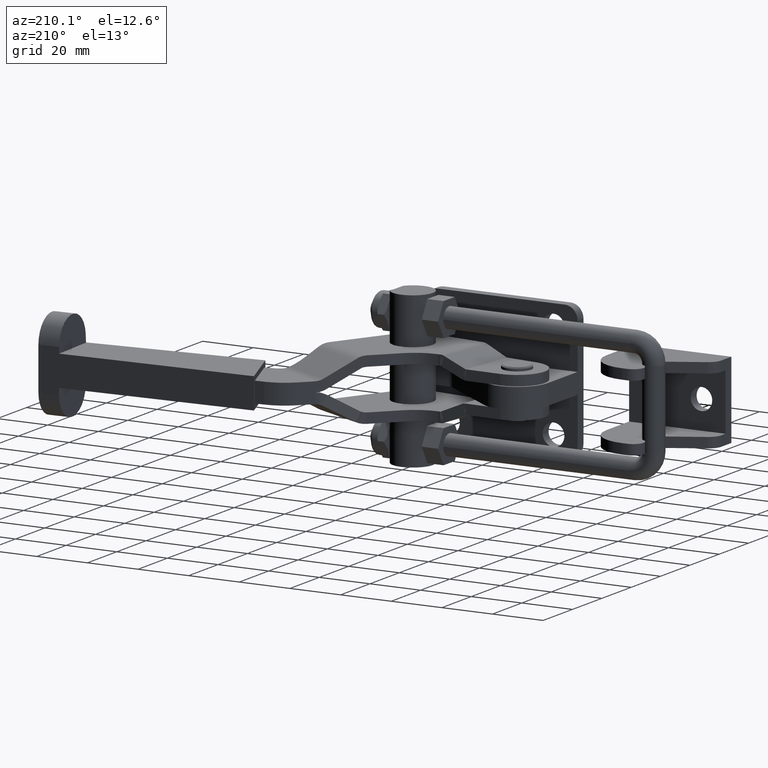
[diagram: clean part render]
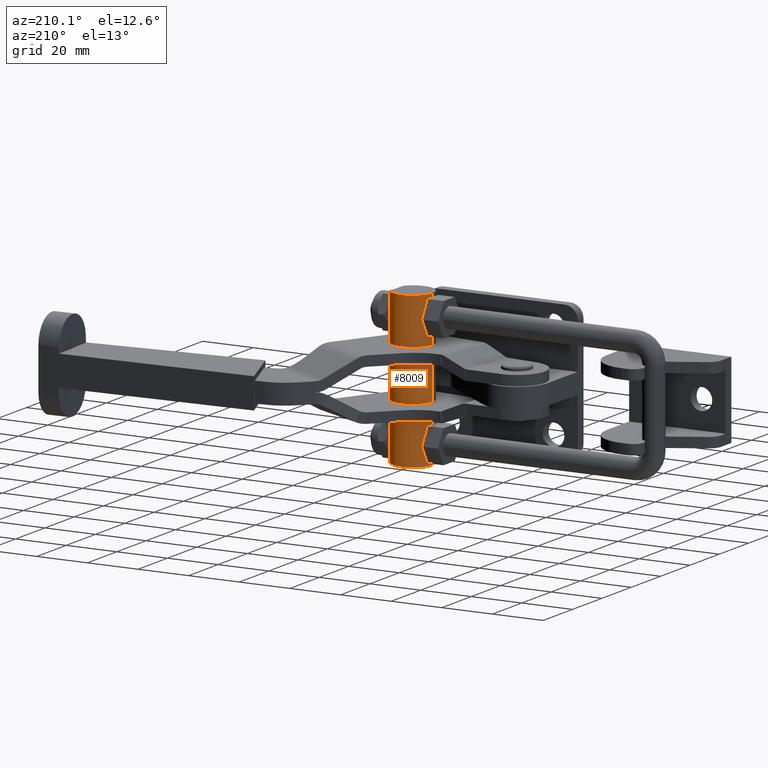
[diagram: same view with one face highlighted and labeled with its STEP entity id]
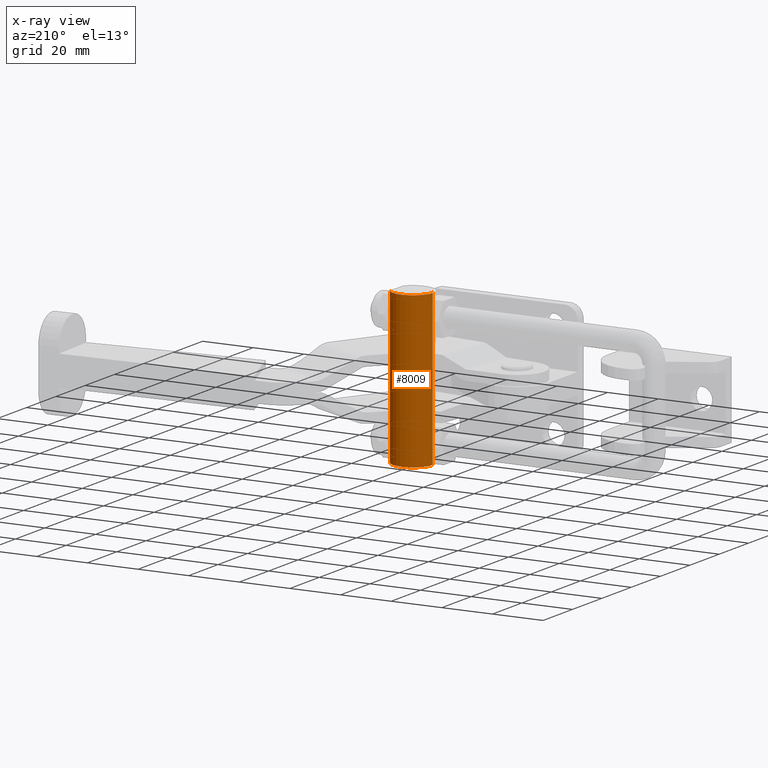
[diagram: x-ray of the same camera — body ghosted, the highlighted face saturated]
A machine part, auxiliary view. The second image highlights one B-rep face of the part: STEP entity #8009.
The next image is the same camera in x-ray: the body ghosted, the highlighted face saturated — about 0% of this face is hidden behind the body in this view.
In plain terms, the highlighted cylindrical surface (edge-blend (fillet) strip) has radius 7.9 mm, axis along (-0, -0, 1).
Its self-contained STEP definition (entity closure, byte-faithful):
#152 = VERTEX_POINT ( 'NONE', #10402 ) ;
#643 = VERTEX_POINT ( 'NONE', #3316 ) ;
#780 = EDGE_CURVE ( 'NONE', #8865, #2119, #8455, .T. ) ;
#861 = EDGE_CURVE ( 'NONE', #8148, #152, #7909, .T. ) ;
#900 = DIRECTION ( 'NONE',  ( -1.253106180652195100E-019, -2.280037029687027400E-018, 1.000000000000000000 ) ) ;
#1067 = CARTESIAN_POINT ( 'NONE',  ( 60.63629203062469500, 27.35929901759610800, 12.74999999999998200 ) ) ;
#1242 = ORIENTED_EDGE ( 'NONE', *, *, #780, .F. ) ;
#1246 = CARTESIAN_POINT ( 'NONE',  ( 62.01511138596539800, 22.86276066177861600, 12.74999999999997900 ) ) ;
#1252 = LINE ( 'NONE', #2995, #10102 ) ;
#1256 = EDGE_CURVE ( 'NONE', #7160, #4249, #6679, .T. ) ;
#1385 = DIRECTION ( 'NONE',  ( 1.253106180652195100E-019, 2.280037029687027400E-018, -1.000000000000000000 ) ) ;
#1394 = CARTESIAN_POINT ( 'NONE',  ( 54.11519915659924600, 22.89999999999990300, -12.75000000000000900 ) ) ;
#1617 = CARTESIAN_POINT ( 'NONE',  ( 60.63629203062469500, 27.35929901759610800, -30.14999999999999500 ) ) ;
#1638 = CARTESIAN_POINT ( 'NONE',  ( 60.63629203062469500, 27.35929901759610800, -30.14999999999999500 ) ) ;
#1713 = CARTESIAN_POINT ( 'NONE',  ( 60.63629203062469500, 27.35929901759610800, 26.94999999999961600 ) ) ;
#1819 = CARTESIAN_POINT ( 'NONE',  ( 46.21528692723308800, 22.93723933822119000, -30.14999999999999500 ) ) ;
#1890 = VECTOR ( 'NONE', #10649, 1000.000000000000000 ) ;
#1925 = CARTESIAN_POINT ( 'NONE',  ( 60.63629203062469500, 27.35929901759610800, -30.14999999999999500 ) ) ;
#1931 = FACE_OUTER_BOUND ( 'NONE', #5915, .T. ) ;
#2064 = EDGE_CURVE ( 'NONE', #7628, #8865, #3973, .T. ) ;
#2119 = VERTEX_POINT ( 'NONE', #4300 ) ;
#2204 = EDGE_CURVE ( 'NONE', #4068, #7628, #5063, .T. ) ;
#2220 = DIRECTION ( 'NONE',  ( -0.9999888897931834600, 0.004713840281175405400, 0.0000000000000000000 ) ) ;
#2223 = AXIS2_PLACEMENT_3D ( 'NONE', #6016, #900, #6877 ) ;
#2304 = VERTEX_POINT ( 'NONE', #3734 ) ;
#2457 = CARTESIAN_POINT ( 'NONE',  ( 60.63629203062469500, 27.35929901759610800, -30.14999999999999500 ) ) ;
#2523 = EDGE_CURVE ( 'NONE', #4249, #9988, #3586, .T. ) ;
#2615 = ORIENTED_EDGE ( 'NONE', *, *, #2204, .F. ) ;
#2682 = CARTESIAN_POINT ( 'NONE',  ( 46.21528692723308800, 22.93723933822119000, -30.14999999999999500 ) ) ;
#2703 = EDGE_CURVE ( 'NONE', #152, #643, #10320, .T. ) ;
#2780 = VECTOR ( 'NONE', #6209, 1000.000000000000000 ) ;
#2995 = CARTESIAN_POINT ( 'NONE',  ( 60.63629203062469500, 27.35929901759610800, -30.14999999999999500 ) ) ;
#3293 = DIRECTION ( 'NONE',  ( 0.9999888897931834600, -0.004713840281175405400, 0.0000000000000000000 ) ) ;
#3316 = CARTESIAN_POINT ( 'NONE',  ( 60.63629203062469500, 27.35929901759610800, 30.14999999999999500 ) ) ;
#3384 = DIRECTION ( 'NONE',  ( 1.253106180652195100E-019, 2.280037029687027400E-018, -1.000000000000000000 ) ) ;
#3494 = CARTESIAN_POINT ( 'NONE',  ( 60.63629203062469500, 27.35929901759610800, -26.94999999999951300 ) ) ;
#3586 = LINE ( 'NONE', #2457, #10186 ) ;
#3734 = CARTESIAN_POINT ( 'NONE',  ( 62.01511138596539800, 22.86276066177861600, -12.75000000000000900 ) ) ;
#3774 = AXIS2_PLACEMENT_3D ( 'NONE', #9592, #4435, #10464 ) ;
#3795 = ORIENTED_EDGE ( 'NONE', *, *, #9453, .F. ) ;
#3973 = LINE ( 'NONE', #1638, #10599 ) ;
#4068 = VERTEX_POINT ( 'NONE', #10876 ) ;
#4096 = CARTESIAN_POINT ( 'NONE',  ( 54.11519915659924600, 22.89999999999990300, -30.14999999999999500 ) ) ;
#4126 = CIRCLE ( 'NONE', #4786, 7.900000000000003900 ) ;
#4173 = CIRCLE ( 'NONE', #2223, 7.900000000000003900 ) ;
#4249 = VERTEX_POINT ( 'NONE', #8578 ) ;
#4300 = CARTESIAN_POINT ( 'NONE',  ( 60.63629203062469500, 27.35929901759610800, -12.75000000000000900 ) ) ;
#4435 = DIRECTION ( 'NONE',  ( 1.253106180652195100E-019, 2.280037029687027400E-018, -1.000000000000000000 ) ) ;
#4675 = CARTESIAN_POINT ( 'NONE',  ( 54.11519915659924600, 22.89999999999990300, -30.14999999999999500 ) ) ;
#4786 = AXIS2_PLACEMENT_3D ( 'NONE', #1394, #7349, #2220 ) ;
#4963 = EDGE_CURVE ( 'NONE', #7274, #9988, #4173, .T. ) ;
#5063 = LINE ( 'NONE', #1925, #2780 ) ;
#5175 = ORIENTED_EDGE ( 'NONE', *, *, #1256, .T. ) ;
#5481 = CARTESIAN_POINT ( 'NONE',  ( 60.63629203062469500, 27.35929901759610800, -30.14999999999999500 ) ) ;
#5544 = DIRECTION ( 'NONE',  ( -0.9999888897931834600, 0.004713840281175405400, 0.0000000000000000000 ) ) ;
#5712 = EDGE_CURVE ( 'NONE', #643, #7160, #1252, .T. ) ;
#5915 = EDGE_LOOP ( 'NONE', ( #8821, #10957, #6161, #9922, #5175, #7113, #8740, #6730, #3795, #1242, #9859, #2615 ) ) ;
#6016 = CARTESIAN_POINT ( 'NONE',  ( 54.11519915659924600, 22.89999999999990300, 12.74999999999997900 ) ) ;
#6097 = AXIS2_PLACEMENT_3D ( 'NONE', #4675, #10699, #5544 ) ;
#6161 = ORIENTED_EDGE ( 'NONE', *, *, #2703, .T. ) ;
#6166 = LINE ( 'NONE', #8308, #8189 ) ;
#6209 = DIRECTION ( 'NONE',  ( -1.253106180652195100E-019, -2.280037029687027400E-018, 1.000000000000000000 ) ) ;
#6228 = DIRECTION ( 'NONE',  ( -1.253106180652195100E-019, -2.280037029687027400E-018, 1.000000000000000000 ) ) ;
#6400 = EDGE_CURVE ( 'NONE', #2304, #7274, #6166, .T. ) ;
#6679 = LINE ( 'NONE', #1617, #8990 ) ;
#6730 = ORIENTED_EDGE ( 'NONE', *, *, #6400, .F. ) ;
#6763 = DIRECTION ( 'NONE',  ( 1.253106180652195100E-019, 2.280037029687027400E-018, -1.000000000000000000 ) ) ;
#6877 = DIRECTION ( 'NONE',  ( 0.9999888897931834600, -0.004713840281175405400, 0.0000000000000000000 ) ) ;
#7113 = ORIENTED_EDGE ( 'NONE', *, *, #2523, .T. ) ;
#7160 = VERTEX_POINT ( 'NONE', #1713 ) ;
#7274 = VERTEX_POINT ( 'NONE', #1246 ) ;
#7349 = DIRECTION ( 'NONE',  ( 1.253106180652195100E-019, 2.280037029687027400E-018, -1.000000000000000000 ) ) ;
#7438 = DIRECTION ( 'NONE',  ( -1.253106180652195100E-019, -2.280037029687027400E-018, 1.000000000000000000 ) ) ;
#7602 = DIRECTION ( 'NONE',  ( -1.253106180652195100E-019, -2.280037029687027400E-018, 1.000000000000000000 ) ) ;
#7628 = VERTEX_POINT ( 'NONE', #3494 ) ;
#7638 = VECTOR ( 'NONE', #6228, 1000.000000000000000 ) ;
#7683 = CYLINDRICAL_SURFACE ( 'NONE', #10762, 7.900000000000003900 ) ;
#7909 = LINE ( 'NONE', #2682, #7638 ) ;
#8009 = ADVANCED_FACE ( 'NONE', ( #1931 ), #7683, .T. ) ;
#8148 = VERTEX_POINT ( 'NONE', #1819 ) ;
#8177 = CIRCLE ( 'NONE', #6097, 7.900000000000003900 ) ;
#8189 = VECTOR ( 'NONE', #7438, 1000.000000000000000 ) ;
#8308 = CARTESIAN_POINT ( 'NONE',  ( 62.01511138596539800, 22.86276066177861600, -30.14999999999999500 ) ) ;
#8455 = LINE ( 'NONE', #5481, #1890 ) ;
#8578 = CARTESIAN_POINT ( 'NONE',  ( 60.63629203062469500, 27.35929901759610800, 17.55000000000036000 ) ) ;
#8740 = ORIENTED_EDGE ( 'NONE', *, *, #4963, .F. ) ;
#8821 = ORIENTED_EDGE ( 'NONE', *, *, #10120, .F. ) ;
#8865 = VERTEX_POINT ( 'NONE', #9003 ) ;
#8990 = VECTOR ( 'NONE', #3384, 1000.000000000000000 ) ;
#9003 = CARTESIAN_POINT ( 'NONE',  ( 60.63629203062469500, 27.35929901759610800, -17.55000000000049100 ) ) ;
#9272 = DIRECTION ( 'NONE',  ( -1.253106180652195100E-019, -2.280037029687027400E-018, 1.000000000000000000 ) ) ;
#9453 = EDGE_CURVE ( 'NONE', #2119, #2304, #4126, .T. ) ;
#9592 = CARTESIAN_POINT ( 'NONE',  ( 54.11519915659924600, 22.89999999999990300, 30.14999999999999500 ) ) ;
#9859 = ORIENTED_EDGE ( 'NONE', *, *, #2064, .F. ) ;
#9922 = ORIENTED_EDGE ( 'NONE', *, *, #5712, .T. ) ;
#9988 = VERTEX_POINT ( 'NONE', #1067 ) ;
#10102 = VECTOR ( 'NONE', #1385, 1000.000000000000000 ) ;
#10120 = EDGE_CURVE ( 'NONE', #8148, #4068, #8177, .T. ) ;
#10186 = VECTOR ( 'NONE', #6763, 1000.000000000000000 ) ;
#10320 = CIRCLE ( 'NONE', #3774, 7.900000000000003900 ) ;
#10402 = CARTESIAN_POINT ( 'NONE',  ( 46.21528692723308800, 22.93723933822119000, 30.14999999999999500 ) ) ;
#10464 = DIRECTION ( 'NONE',  ( -0.9999888897931834600, 0.004713840281175405400, 0.0000000000000000000 ) ) ;
#10599 = VECTOR ( 'NONE', #7602, 1000.000000000000000 ) ;
#10649 = DIRECTION ( 'NONE',  ( -1.253106180652195100E-019, -2.280037029687027400E-018, 1.000000000000000000 ) ) ;
#10699 = DIRECTION ( 'NONE',  ( 1.253106180652195100E-019, 2.280037029687027400E-018, -1.000000000000000000 ) ) ;
#10762 = AXIS2_PLACEMENT_3D ( 'NONE', #4096, #9272, #3293 ) ;
#10876 = CARTESIAN_POINT ( 'NONE',  ( 60.63629203062469500, 27.35929901759610800, -30.14999999999997700 ) ) ;
#10957 = ORIENTED_EDGE ( 'NONE', *, *, #861, .T. ) ;